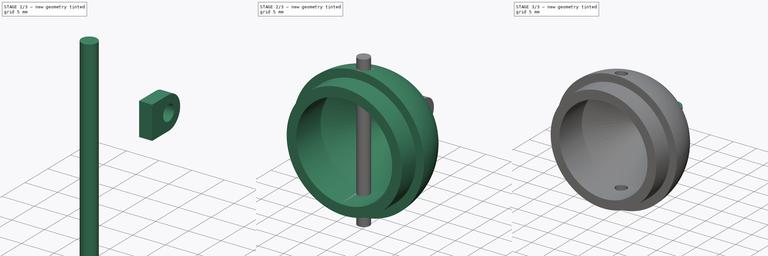
[diagram: build sequence overview — one tinted view per stage of 3, left to right]
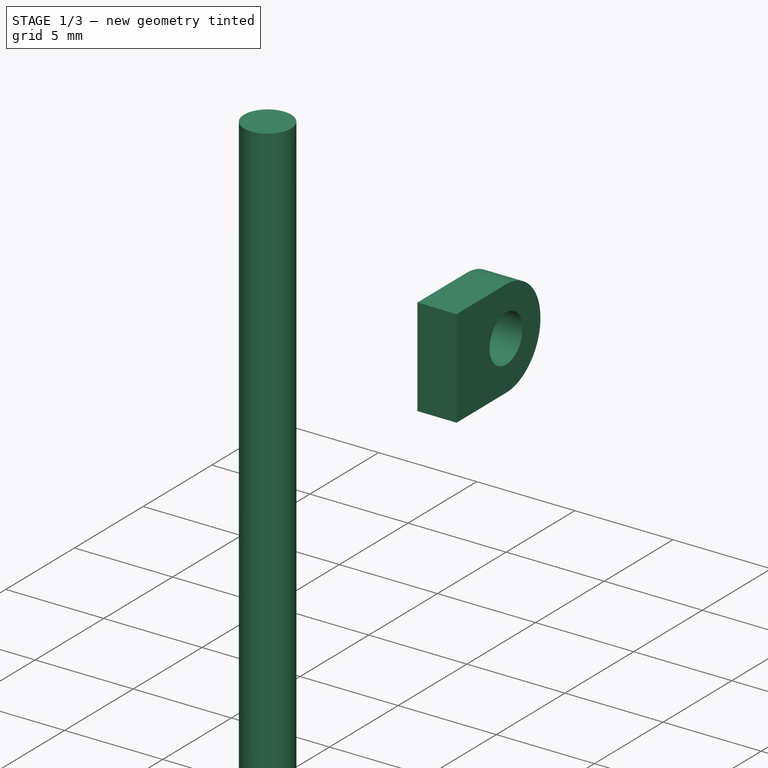
[diagram: stage 1 of 3 — iso view after this stage's code; geometry added in this stage tinted green]
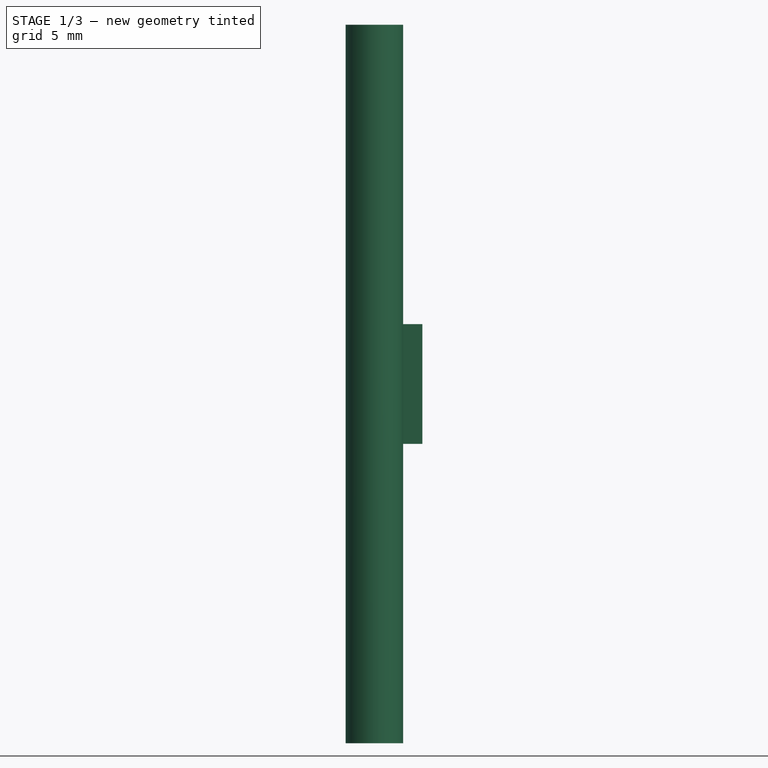
[diagram: stage 1 of 3 — front view after this stage's code; geometry added in this stage tinted green]
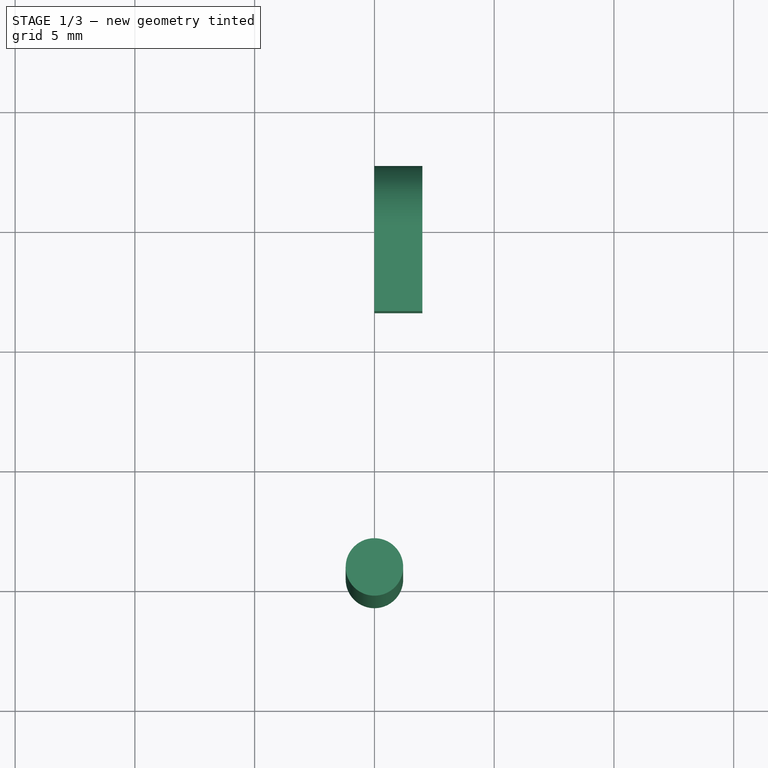
[diagram: stage 1 of 3 — top view after this stage's code; geometry added in this stage tinted green]
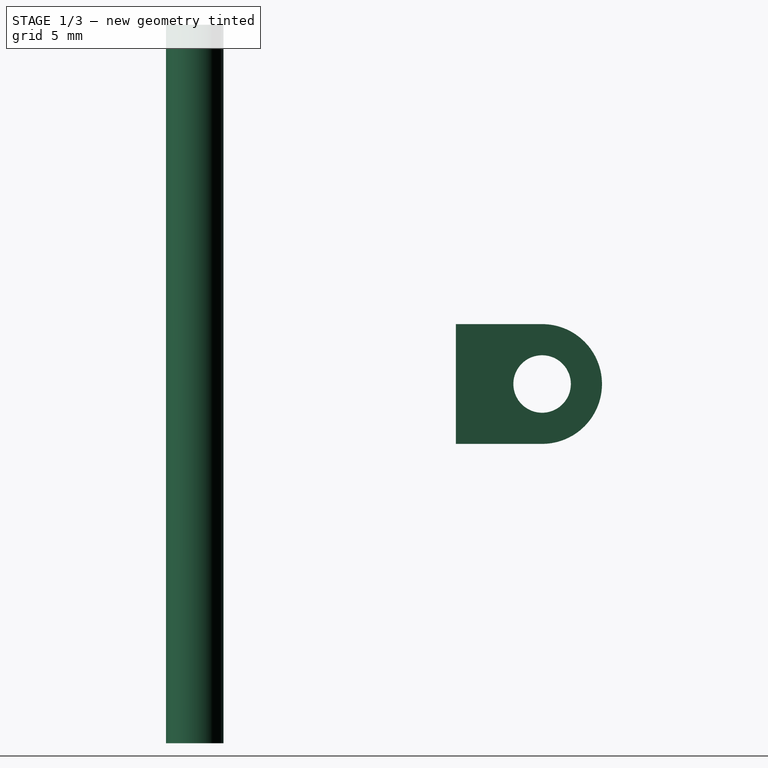
[diagram: stage 1 of 3 — right view after this stage's code; geometry added in this stage tinted green]
FCSTD DOCUMENT  (FreeCAD 0.18R4 (GitTag))
Label: tab6
License: All rights reserved
LicenseURL: http://en.wikipedia.org/wiki/All_rights_reserved
objects: Sketcher::SketchObject×2, PartDesign::Body×2, PartDesign::Revolution×1, Part::Cylinder×1, Part::Cut×1, PartDesign::Pad×1, Part::MultiFuse×1
note: 11 computed .brp shape members not serialized (recipe doc carries the construction recipe); baked Part::Feature solids carry a one-line shape summary decoded from their .brp

FEATURE [PartDesign::Body] Body
  Group = -> [Sketch,Revolution]
  Origin = -> Origin
  Tip = -> Revolution
FEATURE [Part::Cylinder] Cylinder
  Angle = 360
  AttacherType = Attacher::AttachEngine3D
  Height = 30
  Placement = pos=(0,5.5,-15) rot=(0,0,1;0rad)
  Radius = 1.2
FEATURE [Sketcher::SketchObject] Sketch001
  MapMode = 5
  Placement = pos=(0,0,0) rot=(0.57735,0.57735,0.57735;2.0944rad)
  Support = -> [YZ_Plane001]
  sketch-geometry (5):
    g0: LineSegment StartX=16.4 StartY=2.5 StartZ=0 EndX=20 EndY=2.5 EndZ=0
    g1: LineSegment StartX=20 StartY=-2.5 StartZ=0 EndX=16.4 EndY=-2.5 EndZ=0
    g2: ArcOfCircle CenterX=20 CenterY=2e-16 CenterZ=0 NormalX=0 NormalY=0 NormalZ=1 AngleXU=0 Radius=2.5 StartAngle=4.71239 EndAngle=7.85398
    g3: Circle CenterX=20 CenterY=2e-16 CenterZ=0 NormalX=0 NormalY=0 NormalZ=1 AngleXU=0 Radius=1.2
    g4: LineSegment StartX=16.4 StartY=2.5 StartZ=0 EndX=16.4 EndY=-2.5 EndZ=0
  constraints (15):
    c: Coincident(g0,g4)
    c: Coincident(g1,g4)
    c: Vertical(g4)
    c: Horizontal(g0)
    c: Horizontal(g1)
    c: Coincident(g1,g2)
    c: Coincident(g0,g2)
    c: Coincident(g2,g3)
    c: Radius(g2) = 2.5
    c: Radius(g3) = 1.2
    c: DistanceY(g-1,g0) = 2.5
    c: DistanceX(g-1,g0) = 16.4
    c: Vertical(g0,g2)
    c: Vertical(g2,g1)
    c: DistanceX(g-1,g2) = 20
FEATURE [PartDesign::Pad] Pad
  Length = 2
  Length2 = 100
  Placement = pos=(0,0,0) rot=(0.57735,0.57735,0.57735;2.0944rad)
  Profile = -> Sketch001
  Type = 0
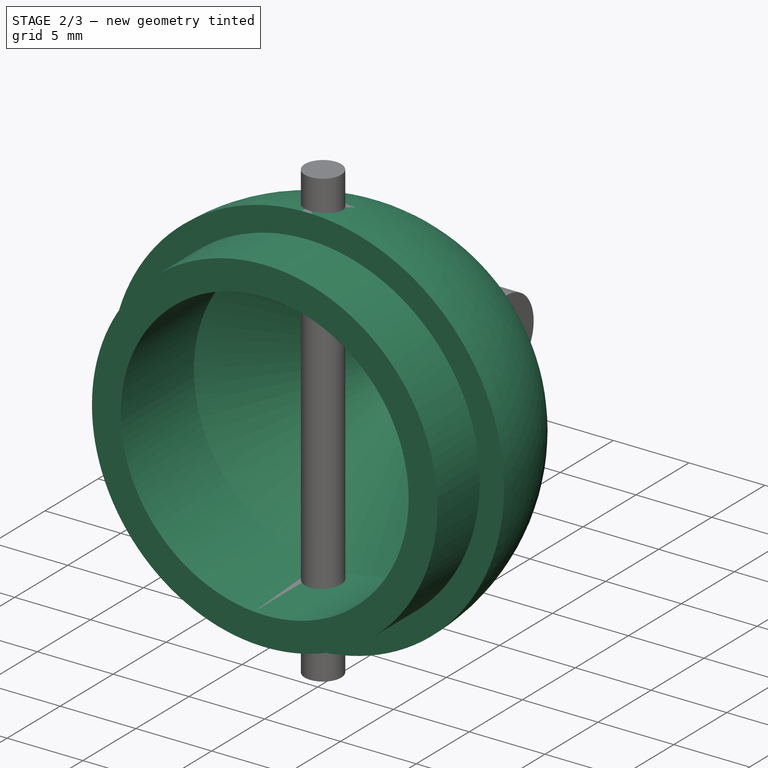
[diagram: stage 2 of 3 — iso view after this stage's code; geometry added in this stage tinted green]
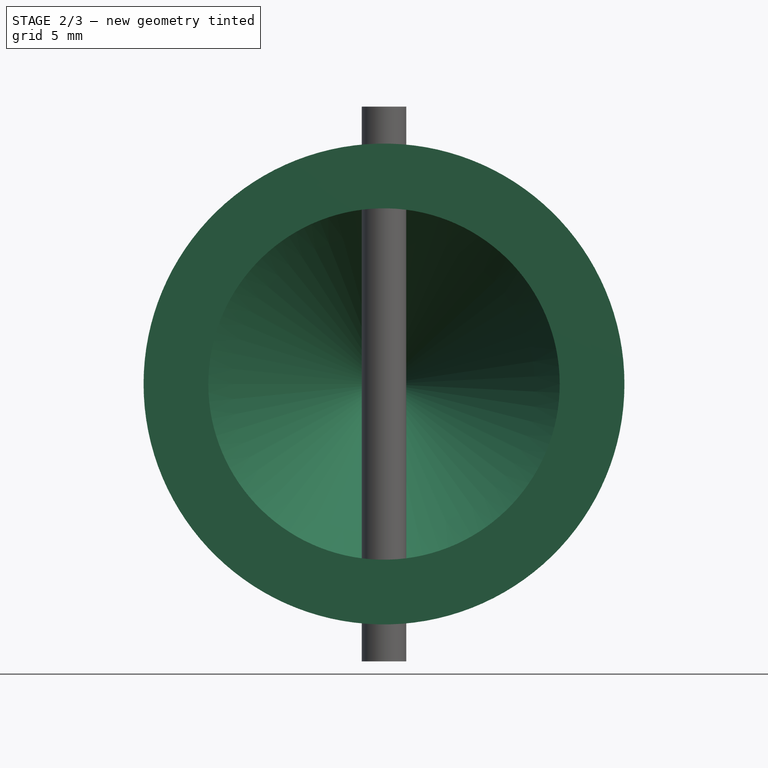
[diagram: stage 2 of 3 — front view after this stage's code; geometry added in this stage tinted green]
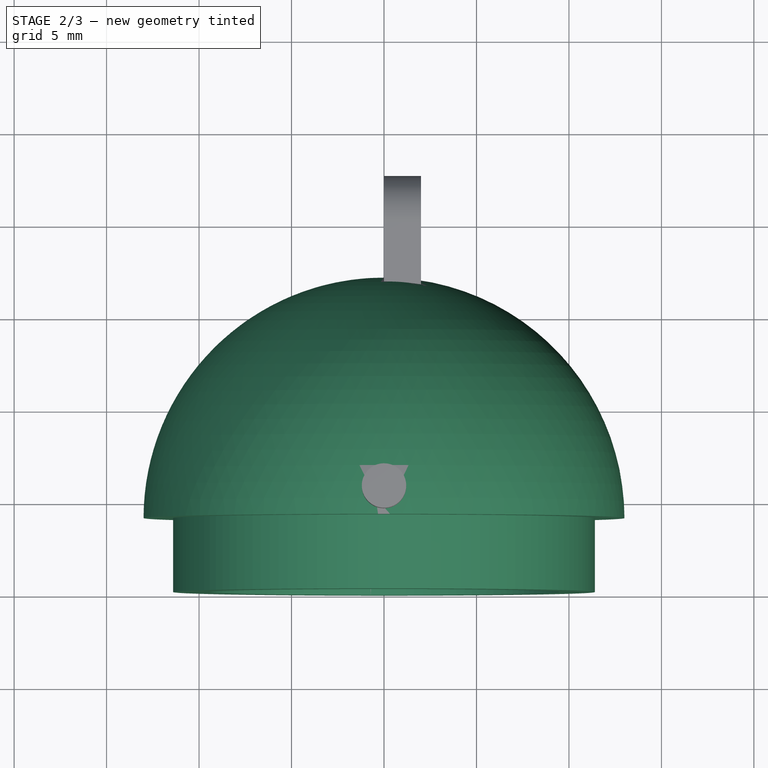
[diagram: stage 2 of 3 — top view after this stage's code; geometry added in this stage tinted green]
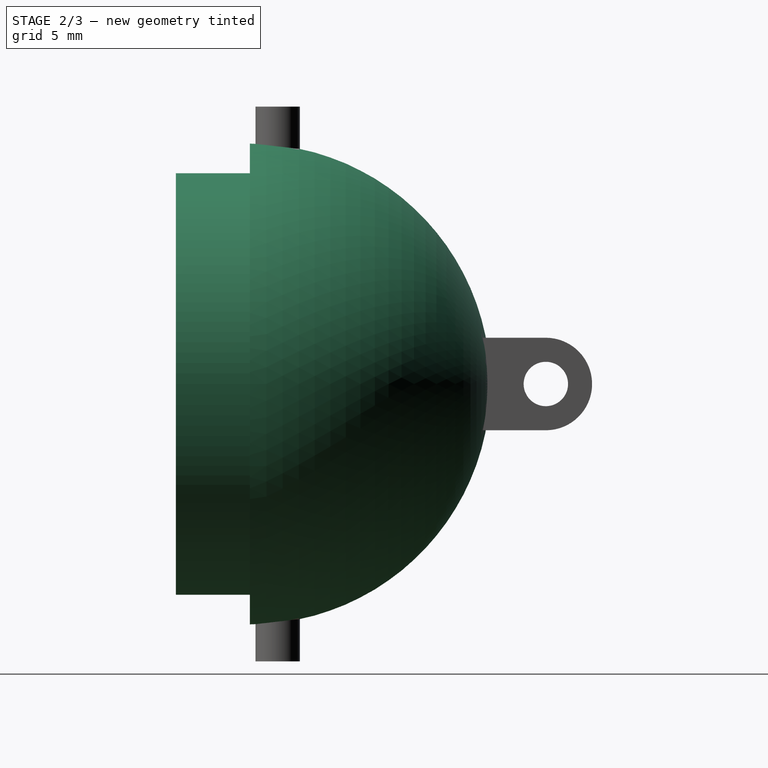
[diagram: stage 2 of 3 — right view after this stage's code; geometry added in this stage tinted green]
FEATURE [Sketcher::SketchObject] Sketch
  MapMode = 5
  Support = -> [XY_Plane]
  sketch-geometry (7):
    g0: ArcOfCircle CenterX=0 CenterY=4 CenterZ=0 NormalX=0 NormalY=0 NormalZ=1 AngleXU=0 Radius=13 StartAngle=1.5708 EndAngle=3.14159
    g1: LineSegment StartX=-13 StartY=4 StartZ=0 EndX=-11.4 EndY=4 EndZ=0
    g2: LineSegment StartX=-11.4 StartY=4 StartZ=0 EndX=-11.4 EndY=0 EndZ=0
    g3: LineSegment StartX=-11.4 StartY=0 StartZ=0 EndX=-9.5 EndY=0 EndZ=0
    g4: LineSegment StartX=-9.5 StartY=0 StartZ=0 EndX=-9.5 EndY=6.9 EndZ=0
    g5: LineSegment StartX=-9.5 StartY=6.9 StartZ=0 EndX=0 EndY=16.4 EndZ=0
    g6: LineSegment StartX=0 StartY=16.4 StartZ=0 EndX=8e-16 EndY=17 EndZ=0
  constraints (22):
    c: Radius(g0) = 13
    c: Vertical(g0,g-1)
    c: DistanceY(g-1,g0) = 4
    c: Coincident(g1,g2)
    c: Coincident(g2,g3)
    c: Coincident(g3,g4)
    c: Coincident(g4,g5)
    c: Coincident(g0,g1)
    c: Vertical(g5,g-1)
    c: Vertical(g4)
    c: Vertical(g2)
    c: Horizontal(g1)
    c: Horizontal(g3)
    c: Horizontal(g3,g-1)
    c: DistanceX(g1,g1) = 1.6
    c: DistanceX(g3,g3) = 1.9
    c: DistanceY(g4,g4) = 6.9
    c: DistanceY(g-1,g5) = 16.4
    c: Horizontal(g0,g0)
    c: Vertical(g0,g-1)
    c: Coincident(g0,g6)
    c: Coincident(g5,g6)
FEATURE [PartDesign::Revolution] Revolution
  Angle = 360
  Axis = (0,1,0)
  Base = (0,0,0)
  Profile = -> Sketch
  ReferenceAxis = -> Sketch [V_Axis]
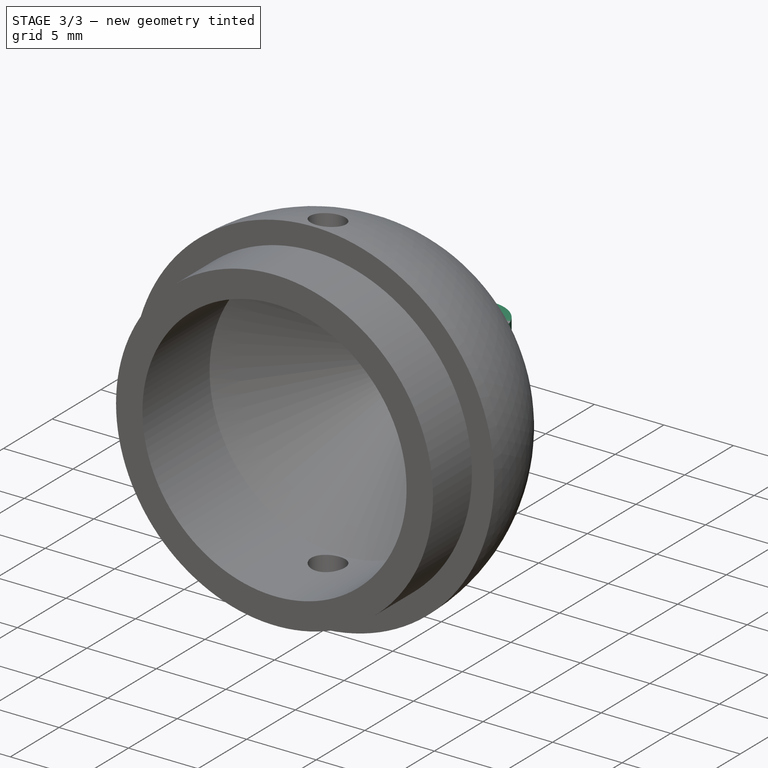
[diagram: stage 3 of 3 — iso view after this stage's code; geometry added in this stage tinted green]
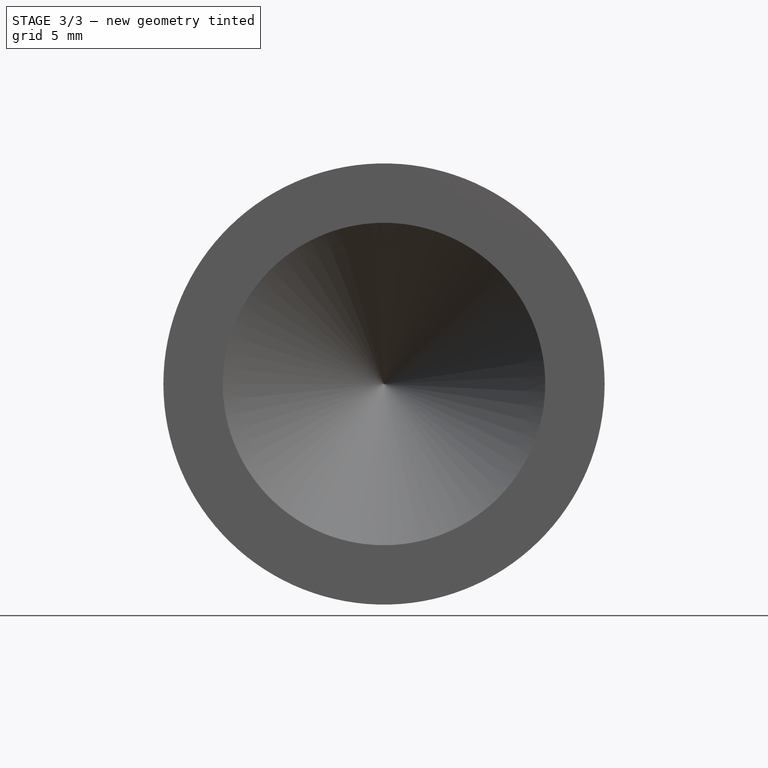
[diagram: stage 3 of 3 — front view after this stage's code; geometry added in this stage tinted green]
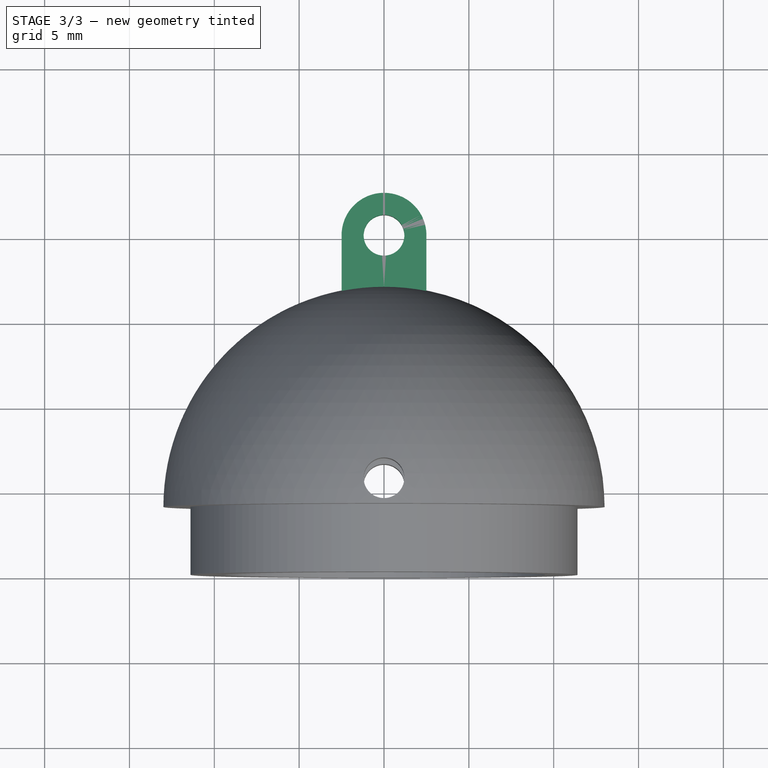
[diagram: stage 3 of 3 — top view after this stage's code; geometry added in this stage tinted green]
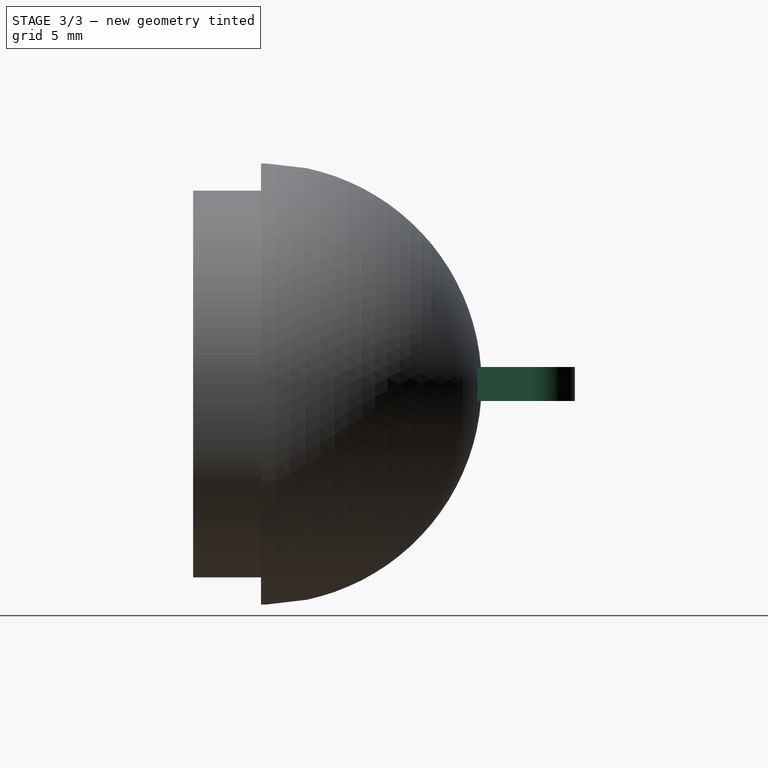
[diagram: stage 3 of 3 — right view after this stage's code; geometry added in this stage tinted green]
FEATURE [Part::Cut] Cut
  Base = -> Body
  Tool = -> Cylinder
FEATURE [PartDesign::Body] Body001
  Group = -> [Sketch001,Pad]
  Origin = -> Origin001
  Placement = pos=(2e-16,0,-1) rot=(0,1,0;4.71239rad)
  Tip = -> Pad
FEATURE [Part::MultiFuse] Fusion
  Shapes = -> [Cut,Body001]
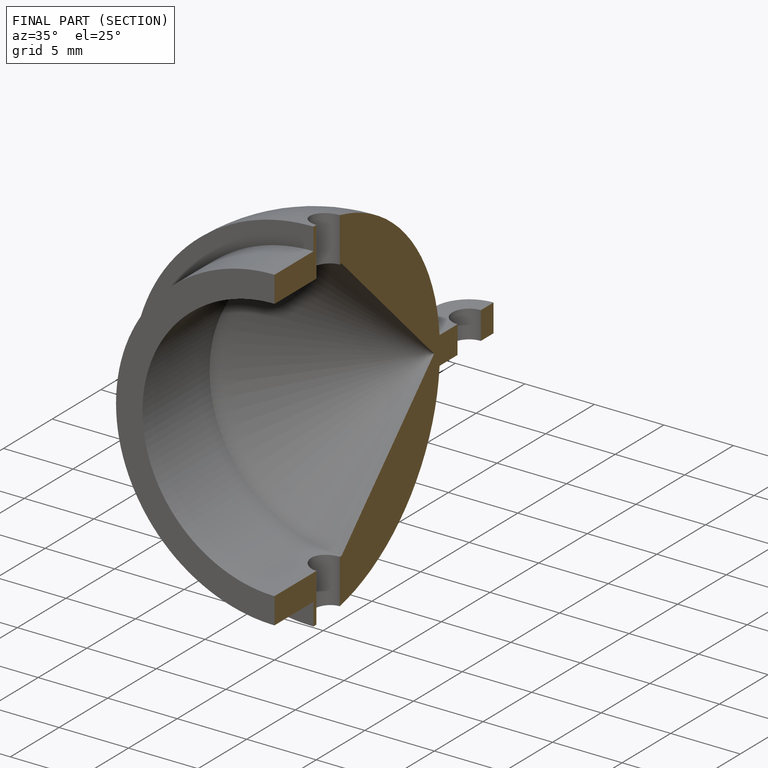
[diagram: finished part — half-section view (interior)]
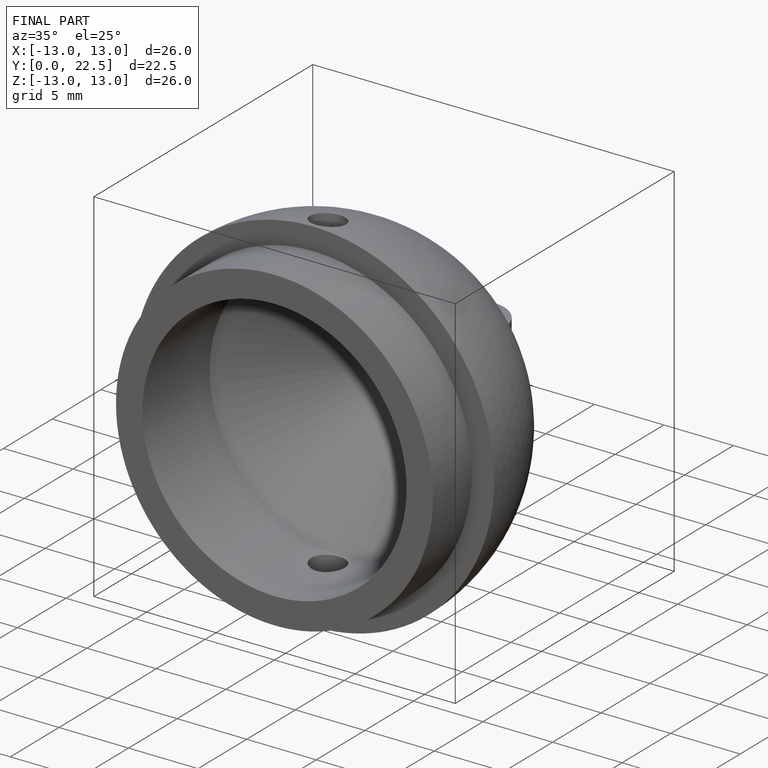
[diagram: finished part — iso view with bounding-box wireframe]
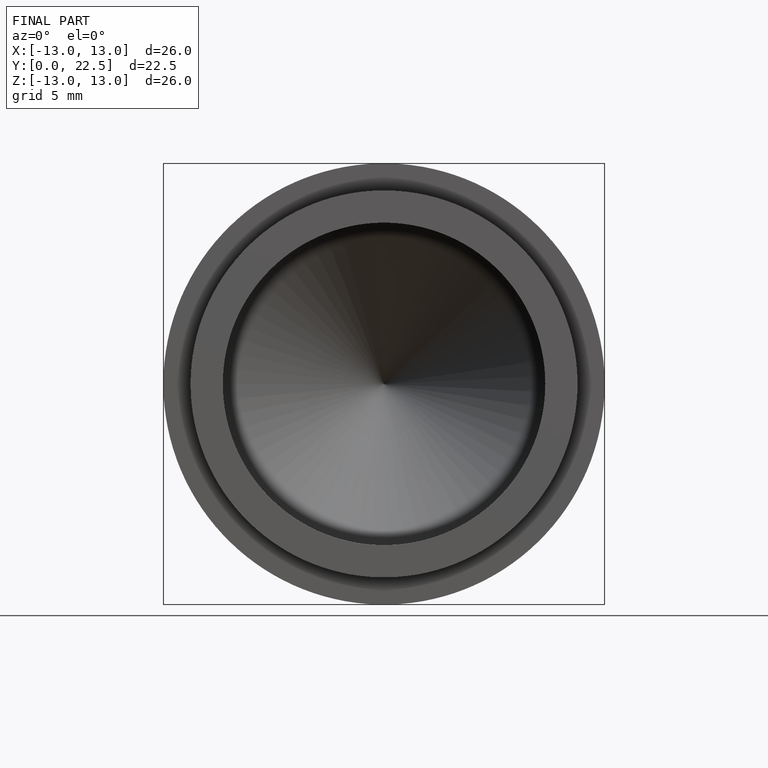
[diagram: finished part — front view with bounding-box wireframe]
